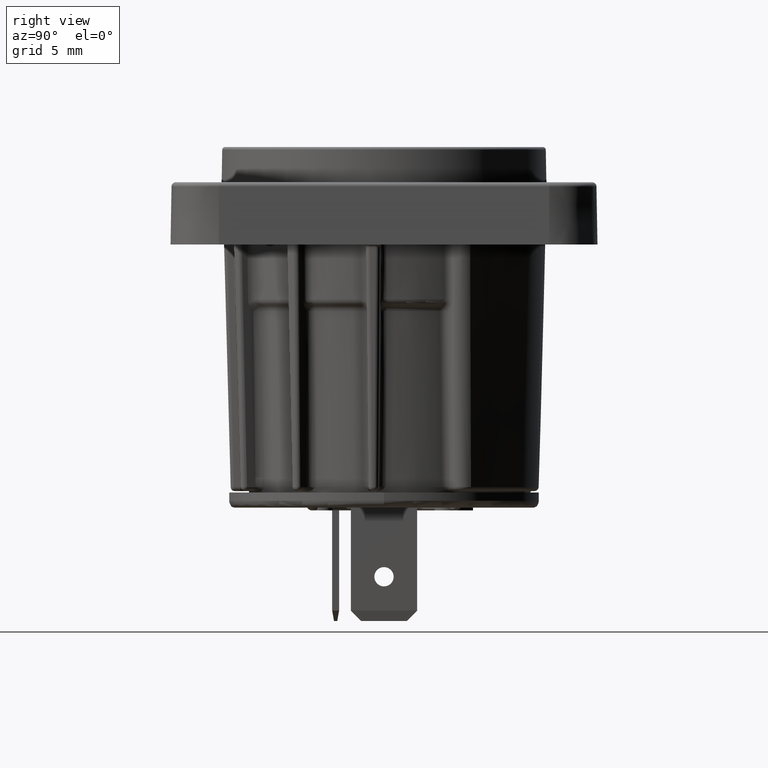
[diagram: clean part render]
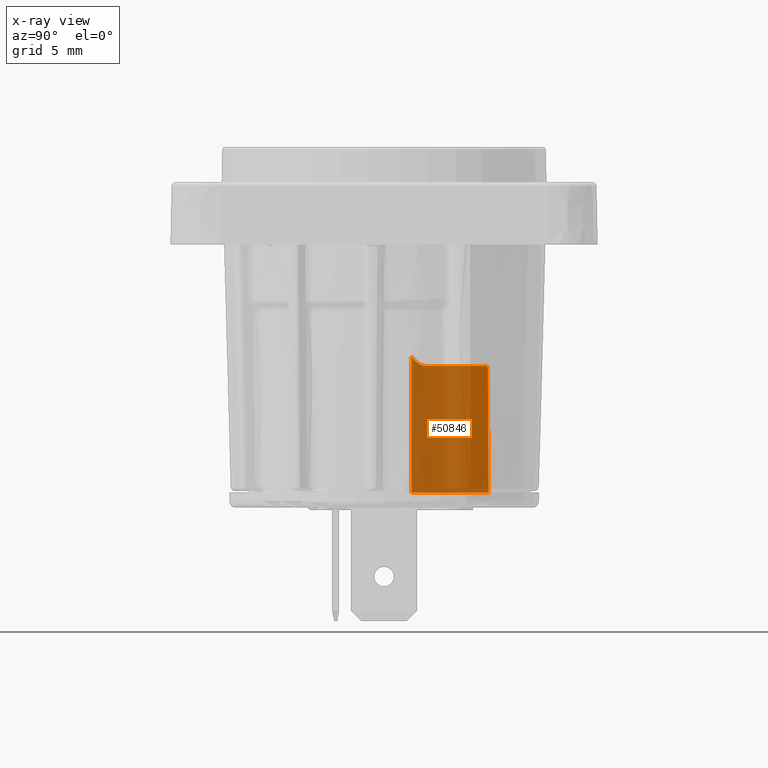
[diagram: x-ray — body ghosted, one internal face saturated and labeled with its STEP entity id]
A machine part, right view, then the same camera in x-ray: the body is ghosted and one INTERNAL B-rep face — a face not visible from any outside direction — is saturated and labeled: STEP entity #50846.
In plain terms, the highlighted cylindrical surface (partial cylindrical patch) has radius 9.7999 mm, axis along (0, 0, 1).
Its self-contained STEP definition (entity closure, byte-faithful):
#50488=CARTESIAN_POINT('',(-9.512242898996E0,2.357106781187E0,
-8.507106781187E0));
#50489=CARTESIAN_POINT('',(-9.543783244925E0,2.229823862146E0,
-8.379823862146E0));
#50490=CARTESIAN_POINT('',(-9.572687171212E0,2.102242115554E0,
-8.252242115554E0));
#50491=CARTESIAN_POINT('',(-9.598989441191E0,1.974365481695E0,
-8.124365481695E0));
#50493=CARTESIAN_POINT('',(-9.512242898996E0,2.357106781187E0,
-8.507106781187E0));
#50494=CARTESIAN_POINT('',(-9.503210591368E0,2.393557189278E0,
-8.543557189278E0));
#50495=CARTESIAN_POINT('',(-9.483260139978E0,2.472294345996E0,
-8.611080518876E0));
#50496=CARTESIAN_POINT('',(-9.447270714396E0,2.606678221226E0,
-8.693778669114E0));
#50497=CARTESIAN_POINT('',(-9.406386398293E0,2.750767801929E0,
-8.753936362608E0));
#50498=CARTESIAN_POINT('',(-9.359821509764E0,2.905431874473E0,
-8.791592062842E0));
#50499=CARTESIAN_POINT('',(-9.326031178249E0,3.011142890052E0,-8.8E0));
#50500=CARTESIAN_POINT('',(-9.308561252502E0,3.064213562373E0,-8.8E0));
#50516=DIRECTION('',(0.E0,0.E0,1.E0));
#50517=VECTOR('',#50516,9.825634518305E0);
#50518=CARTESIAN_POINT('',(-9.598989441191E0,1.974365481695E0,-1.795E1));
#50519=LINE('',#50518,#50517);
#50520=CARTESIAN_POINT('',(0.E0,0.E0,-1.795E1));
#50521=DIRECTION('',(0.E0,0.E0,-1.E0));
#50522=DIRECTION('',(-9.794952592861E-1,2.014672108212E-1,0.E0));
#50523=AXIS2_PLACEMENT_3D('',#50520,#50521,#50522);
#50525=CARTESIAN_POINT('',(0.E0,0.E0,-8.8E0));
#50526=DIRECTION('',(0.E0,0.E0,1.E0));
#50527=DIRECTION('',(-6.575461670221E-1,7.534142540692E-1,0.E0));
#50528=AXIS2_PLACEMENT_3D('',#50525,#50526,#50527);
#50585=CARTESIAN_POINT('',(-6.228679611749E0,7.565861989331E0,-1.795E1));
#50586=CARTESIAN_POINT('',(-6.249128307102E0,7.549027374582E0,
-1.496608507066E1));
#50587=CARTESIAN_POINT('',(-6.269493335522E0,7.532122552968E0,
-1.198216996804E1));
#50588=CARTESIAN_POINT('',(-6.289775065918E0,7.515147834046E0,
-8.998254692900E0));
#50606=CARTESIAN_POINT('',(-6.443909405892E0,7.383410385185E0,-8.8E0));
#50607=CARTESIAN_POINT('',(-6.430728781905E0,7.394913842593E0,-8.8E0));
#50608=CARTESIAN_POINT('',(-6.404244770869E0,7.417902323313E0,
-8.804438708697E0));
#50609=CARTESIAN_POINT('',(-6.366190662747E0,7.450574065426E0,
-8.824943297472E0));
#50610=CARTESIAN_POINT('',(-6.334409161888E0,7.477595385555E0,
-8.856604748160E0));
#50611=CARTESIAN_POINT('',(-6.309596454377E0,7.498529879751E0,
-8.897658082586E0));
#50612=CARTESIAN_POINT('',(-6.293486959109E0,7.512043460661E0,
-8.946943825115E0));
#50613=CARTESIAN_POINT('',(-6.289890899474E0,7.515050887582E0,
-8.981212876942E0));
#50614=CARTESIAN_POINT('',(-6.289775065918E0,7.515147834046E0,
-8.998254692900E0));
#50628=CARTESIAN_POINT('',(-6.443909405892E0,7.383410385185E0,-8.8E0));
#50629=CARTESIAN_POINT('',(-9.308561252502E0,3.064213562373E0,-8.8E0));
#50630=VERTEX_POINT('',#50628);
#50631=VERTEX_POINT('',#50629);
#50632=VERTEX_POINT('',#50585);
#50633=VERTEX_POINT('',#50588);
#50634=VERTEX_POINT('',#50493);
#50636=CARTESIAN_POINT('',(-9.598989441191E0,1.974365481695E0,
-8.124365481695E0));
#50638=VERTEX_POINT('',#50636);
#50642=CARTESIAN_POINT('',(-9.598989441191E0,1.974365481695E0,-1.795E1));
#50644=VERTEX_POINT('',#50642);
#50828=CARTESIAN_POINT('',(0.E0,0.E0,-1.795E1));
#50829=DIRECTION('',(0.E0,0.E0,1.E0));
#50830=DIRECTION('',(1.E0,0.E0,0.E0));
#50831=AXIS2_PLACEMENT_3D('',#50828,#50829,#50830);
#50832=CYLINDRICAL_SURFACE('',#50831,9.799934558323E0);
#50833=ORIENTED_EDGE('',*,*,#50791,.T.);
#50834=ORIENTED_EDGE('',*,*,#50809,.F.);
#50835=ORIENTED_EDGE('',*,*,#50819,.T.);
#50837=ORIENTED_EDGE('',*,*,#50836,.F.);
#50839=ORIENTED_EDGE('',*,*,#50838,.T.);
#50841=ORIENTED_EDGE('',*,*,#50840,.F.);
#50843=ORIENTED_EDGE('',*,*,#50842,.F.);
#50844=EDGE_LOOP('',(#50833,#50834,#50835,#50837,#50839,#50841,#50843));
#50845=FACE_OUTER_BOUND('',#50844,.F.);
#50846=ADVANCED_FACE('',(#50845),#50832,.F.);
#50492=B_SPLINE_CURVE_WITH_KNOTS('',3,(#50488,#50489,#50490,#50491),
.UNSPECIFIED.,.F.,.F.,(4,4),(0.E0,1.E0),.UNSPECIFIED.);
#50501=B_SPLINE_CURVE_WITH_KNOTS('',3,(#50493,#50494,#50495,#50496,#50497,
#50498,#50499,#50500),.UNSPECIFIED.,.F.,.F.,(4,1,1,1,1,4),(0.E0,2.E-1,4.E-1,
6.E-1,8.E-1,1.E0),.UNSPECIFIED.);
#50524=CIRCLE('',#50523,9.799934558323E0);
#50529=CIRCLE('',#50528,9.799934558323E0);
#50589=B_SPLINE_CURVE_WITH_KNOTS('',3,(#50585,#50586,#50587,#50588),
.UNSPECIFIED.,.F.,.F.,(4,4),(0.E0,1.E0),.UNSPECIFIED.);
#50615=B_SPLINE_CURVE_WITH_KNOTS('',3,(#50606,#50607,#50608,#50609,#50610,
#50611,#50612,#50613,#50614),.UNSPECIFIED.,.F.,.F.,(4,1,1,1,1,1,4),(0.E0,
1.666666666667E-1,3.333333333333E-1,5.E-1,6.666666666667E-1,8.333333333333E-1,
1.E0),.UNSPECIFIED.);
#50791=EDGE_CURVE('',#50644,#50638,#50519,.T.);
#50809=EDGE_CURVE('',#50634,#50638,#50492,.T.);
#50819=EDGE_CURVE('',#50634,#50631,#50501,.T.);
#50836=EDGE_CURVE('',#50630,#50631,#50529,.T.);
#50838=EDGE_CURVE('',#50630,#50633,#50615,.T.);
#50840=EDGE_CURVE('',#50632,#50633,#50589,.T.);
#50842=EDGE_CURVE('',#50644,#50632,#50524,.T.);